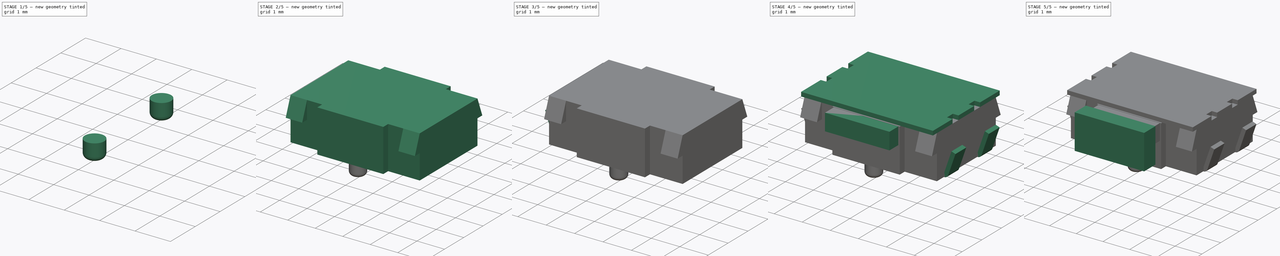
[diagram: build sequence overview — one tinted view per stage of 5, left to right]
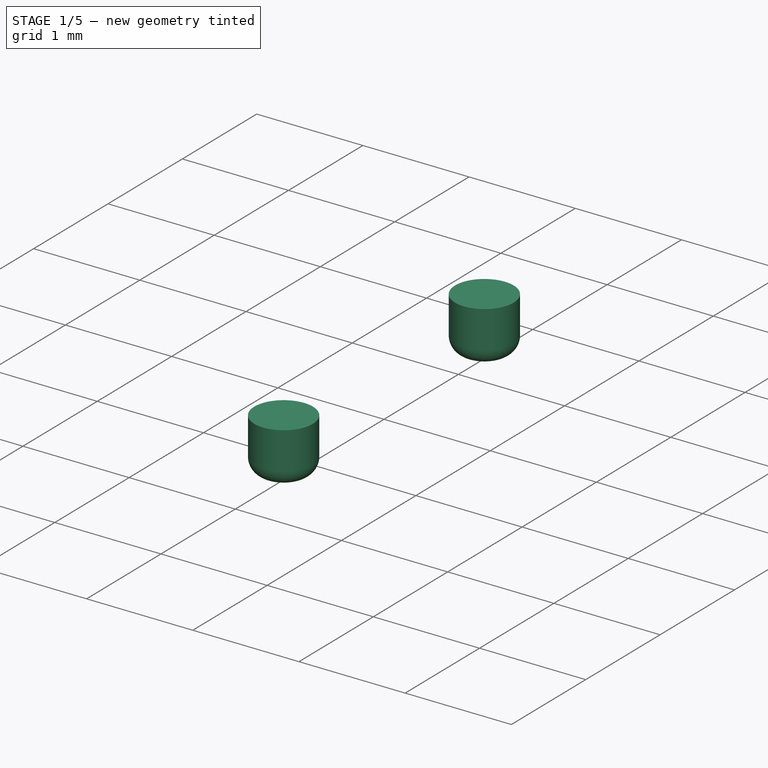
[diagram: stage 1 of 5 — iso view after this stage's code; geometry added in this stage tinted green]
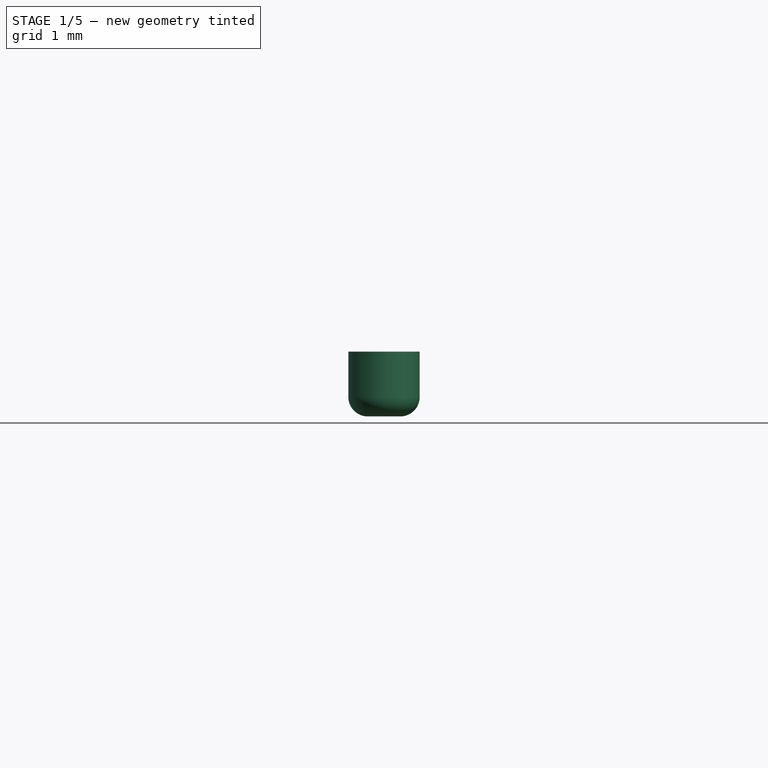
[diagram: stage 1 of 5 — front view after this stage's code; geometry added in this stage tinted green]
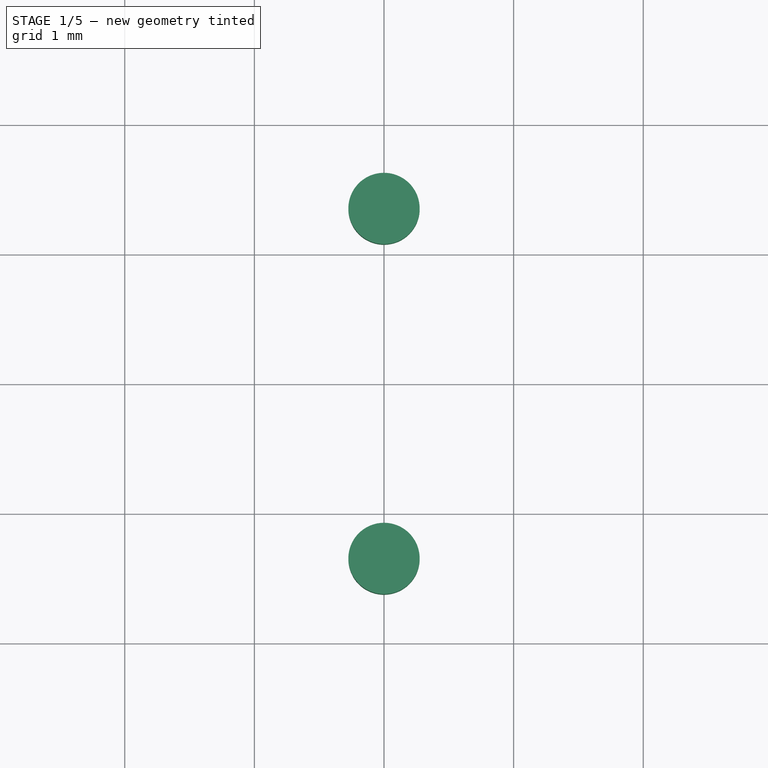
[diagram: stage 1 of 5 — top view after this stage's code; geometry added in this stage tinted green]
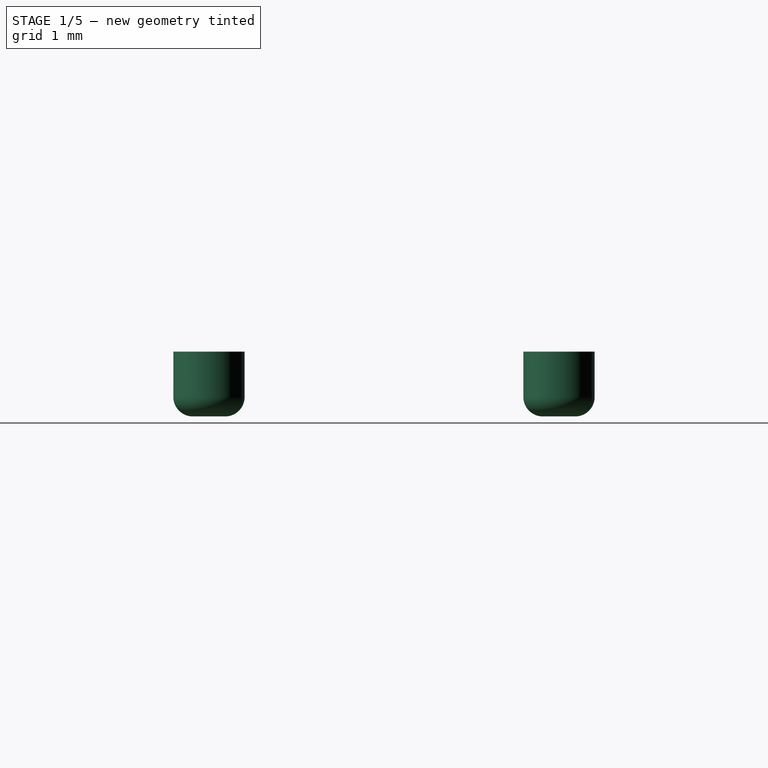
[diagram: stage 1 of 5 — right view after this stage's code; geometry added in this stage tinted green]
FCSTD DOCUMENT  (FreeCAD 0.18R)
Label: THAU13
License: All rights reserved
LicenseURL: http://en.wikipedia.org/wiki/All_rights_reserved
objects: Sketcher::SketchObject×5, Part::Extrusion×5, Part::MultiFuse×4, Part::FeaturePython×4, Part::Box×2, Part::Fillet×1, Part::Mirroring×1
note: 22 computed .brp shape members not serialized (recipe doc carries the construction recipe); baked Part::Feature solids carry a one-line shape summary decoded from their .brp

FEATURE [Sketcher::SketchObject] Sketch001  label="skcontact"
  sketch-geometry (1):
    g0: Circle CenterX=0 CenterY=-1.35 CenterZ=0 NormalX=0 NormalY=0 NormalZ=1 AngleXU=0 Radius=0.275
  constraints (3):
    c: PointOnObject(g0,g-2)
    c: Radius(g0) = 0.275
    c: DistanceY(g0,g-1) = 1.35
FEATURE [Part::Extrusion] Extrude001  label="contact"
  Base = -> Sketch001
  Dir = (0,0,-1)
  DirMode = 0
  FaceMakerClass = Part::FaceMakerBullseye
  LengthFwd = 0.5
  LengthRev = 0
  Solid = true
  Symmetric = false
FEATURE [Part::Fillet] Fillet  label="contactform"
  Base = -> Extrude001
  Edges = 1 edges r=0.15: [Edge3]
FEATURE [Part::FeaturePython] Array003  label="contactforms"  # Draft array (typed FeaturePython)
  Angle = 360
  ArrayType = 0
  Axis = (0,0,1)
  Base = -> Fillet
  Center = (0,0,0)
  Fuse = false
  IntervalAxis = (0,0,0)
  IntervalX = (1,0,0)
  IntervalY = (0,2.7,0)
  IntervalZ = (0,0,1)
  NumberPolar = 1
  NumberX = 1
  NumberY = 2
  NumberZ = 1
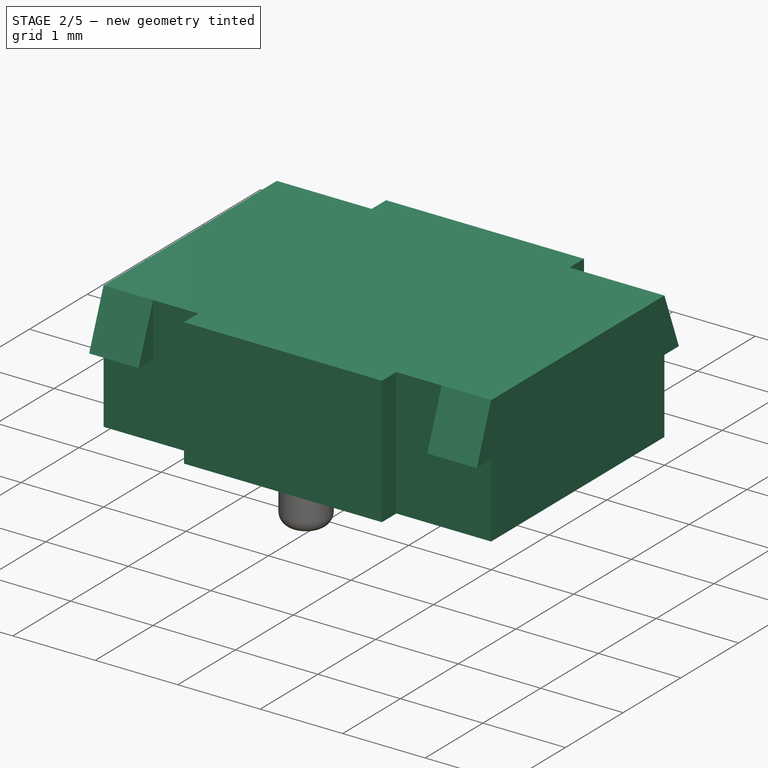
[diagram: stage 2 of 5 — iso view after this stage's code; geometry added in this stage tinted green]
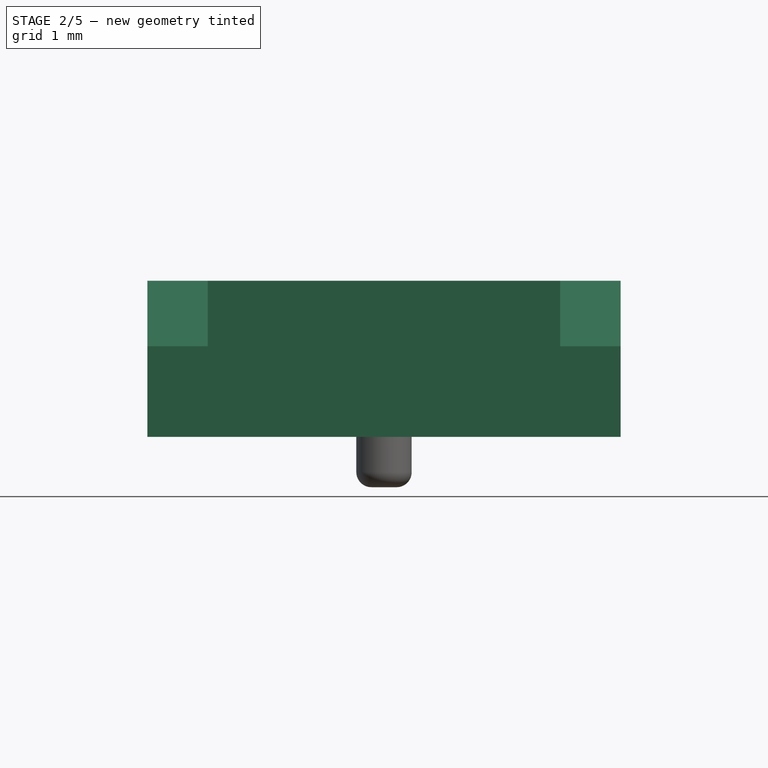
[diagram: stage 2 of 5 — front view after this stage's code; geometry added in this stage tinted green]
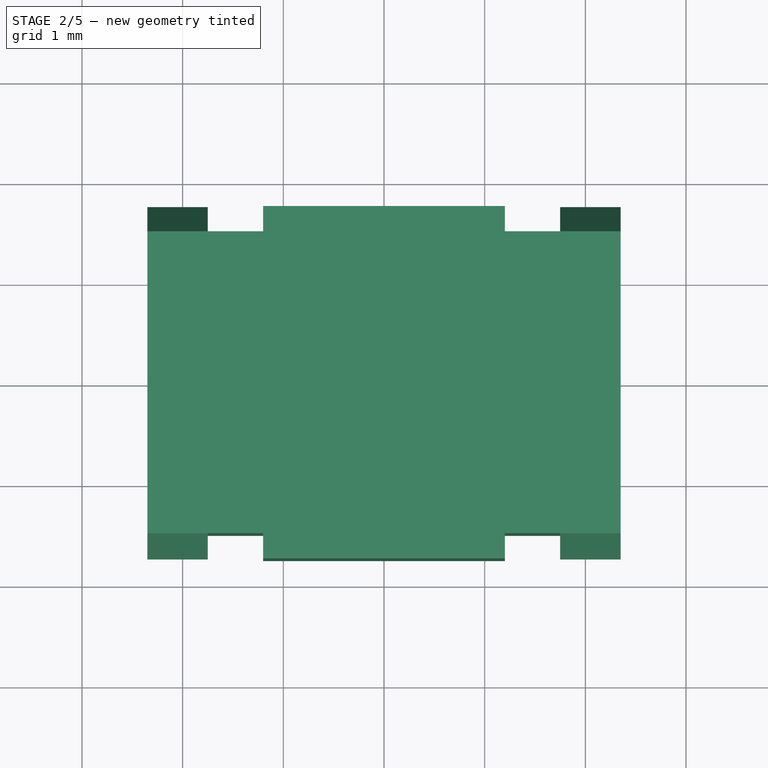
[diagram: stage 2 of 5 — top view after this stage's code; geometry added in this stage tinted green]
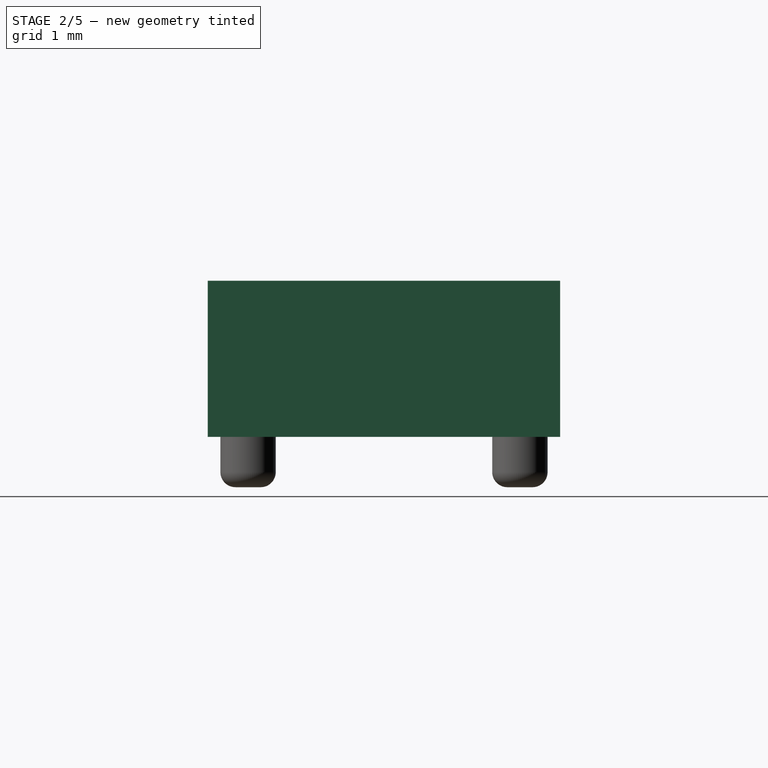
[diagram: stage 2 of 5 — right view after this stage's code; geometry added in this stage tinted green]
FEATURE [Sketcher::SketchObject] Sketch002  label="skhousing"
  sketch-geometry (12):
    g0: LineSegment StartX=-2.35 StartY=1.5 StartZ=0 EndX=-1.2 EndY=1.5 EndZ=0
    g1: LineSegment StartX=2.35 StartY=1.5 StartZ=0 EndX=2.35 EndY=-1.5 EndZ=0
    g2: LineSegment StartX=-1.2 StartY=-1.5 StartZ=0 EndX=-2.35 EndY=-1.5 EndZ=0
    g3: LineSegment StartX=-2.35 StartY=-1.5 StartZ=0 EndX=-2.35 EndY=1.5 EndZ=0
    g4: LineSegment StartX=2.35 StartY=-1.5 StartZ=0 EndX=1.2 EndY=-1.5 EndZ=0
    g5: LineSegment StartX=1.2 StartY=-1.5 StartZ=0 EndX=1.2 EndY=-1.75 EndZ=0
    g6: LineSegment StartX=1.2 StartY=-1.75 StartZ=0 EndX=-1.2 EndY=-1.75 EndZ=0
    g7: LineSegment StartX=-1.2 StartY=-1.75 StartZ=0 EndX=-1.2 EndY=-1.5 EndZ=0
    g8: LineSegment StartX=-1.2 StartY=1.5 StartZ=0 EndX=-1.2 EndY=1.75 EndZ=0
    g9: LineSegment StartX=-1.2 StartY=1.75 StartZ=0 EndX=1.2 EndY=1.75 EndZ=0
    g10: LineSegment StartX=1.2 StartY=1.75 StartZ=0 EndX=1.2 EndY=1.5 EndZ=0
    g11: LineSegment StartX=1.2 StartY=1.5 StartZ=0 EndX=2.35 EndY=1.5 EndZ=0
  constraints (36):
    c: Coincident(g2,g3)
    c: Coincident(g3,g0)
    c: Horizontal(g0)
    c: Horizontal(g2)
    c: Vertical(g1)
    c: Vertical(g3)
    c: DistanceY(g2,g-1) = 1.5
    c: DistanceX(g2,g-1) = 2.35
    c: DistanceY(g-1,g0) = 1.5
    c: DistanceX(g-1,g1) = 2.35
    c: Coincident(g4,g5)
    c: Coincident(g5,g6)
    c: Coincident(g6,g7)
    c: Horizontal(g4)
    c: Horizontal(g6)
    c: Vertical(g5)
    c: Vertical(g7)
    c: Coincident(g1,g4)
    c: Coincident(g2,g7)
    c: Equal(g2,g4)
    c: DistanceX(g6,g-1) = 1.2
    c: Equal(g3,g1)
    c: DistanceY(g6,g-1) = 1.75
    c: Coincident(g0,g8)
    c: Vertical(g8)
    c: Coincident(g8,g9)
    c: Horizontal(g9)
    c: Coincident(g9,g10)
    c: Vertical(g10)
    c: Coincident(g10,g11)
    c: Coincident(g11,g1)
    c: Horizontal(g11)
    c: Equal(g0,g11)
    c: Equal(g11,g4)
    c: Equal(g8,g10)
    c: DistanceY(g-1,g8) = 1.75
FEATURE [Part::Extrusion] Extrude002  label="housing"
  Base = -> Sketch002
  Dir = (0,0,1)
  DirMode = 2
  FaceMakerClass = Part::FaceMakerBullseye
  LengthFwd = 1.55
  LengthRev = 0
  Solid = true
  Symmetric = false
FEATURE [Sketcher::SketchObject] Sketch004  label="skclaw"
  Placement = pos=(1.75,0,0) rot=(0.57735,0.57735,0.57735;2.0944rad)
  sketch-geometry (3):
    g0: LineSegment StartX=-1.5 StartY=0.9 StartZ=0 EndX=-1.75 EndY=0.9 EndZ=0
    g1: LineSegment StartX=-1.75 StartY=0.9 StartZ=0 EndX=-1.5 EndY=1.55 EndZ=0
    g2: LineSegment StartX=-1.5 StartY=1.55 StartZ=0 EndX=-1.5 EndY=0.9 EndZ=0
  constraints (9):
    c: Horizontal(g0)
    c: Coincident(g1,g0)
    c: Coincident(g2,g1)
    c: Coincident(g2,g0)
    c: Vertical(g2)
    c: DistanceX(g0,g-1) = 1.5
    c: DistanceX(g0,g0) = 0.25
    c: DistanceY(g-1,g0) = 0.9
    c: DistanceY(g2,g2) = 0.65
FEATURE [Part::Extrusion] Extrude004  label="claw"
  Base = -> Sketch004
  Dir = (1,-1e-16,2e-16)
  DirMode = 2
  FaceMakerClass = Part::FaceMakerBullseye
  LengthFwd = 0.6
  LengthRev = 0
  Solid = true
  Symmetric = false
FEATURE [Part::FeaturePython] Array001  label="frontclaws"  # Draft array (typed FeaturePython)
  Angle = 360
  ArrayType = 0
  Axis = (0,0,1)
  Base = -> Extrude004
  Center = (0,0,0)
  Fuse = false
  IntervalAxis = (0,0,0)
  IntervalX = (-4.1,0,0)
  IntervalY = (0,1,0)
  IntervalZ = (0,0,1)
  NumberPolar = 1
  NumberX = 2
  NumberY = 1
  NumberZ = 1
FEATURE [Part::FeaturePython] Array002  label="claws"  # Draft array (typed FeaturePython)
  Angle = 360
  ArrayType = 1
  Axis = (0,0,1)
  Base = -> Array001
  Center = (0,0,0)
  Fuse = false
  IntervalAxis = (0,0,0)
  IntervalX = (1,0,0)
  IntervalY = (0,1,0)
  IntervalZ = (0,0,1)
  NumberPolar = 2
  NumberX = 1
  NumberY = 1
  NumberZ = 1
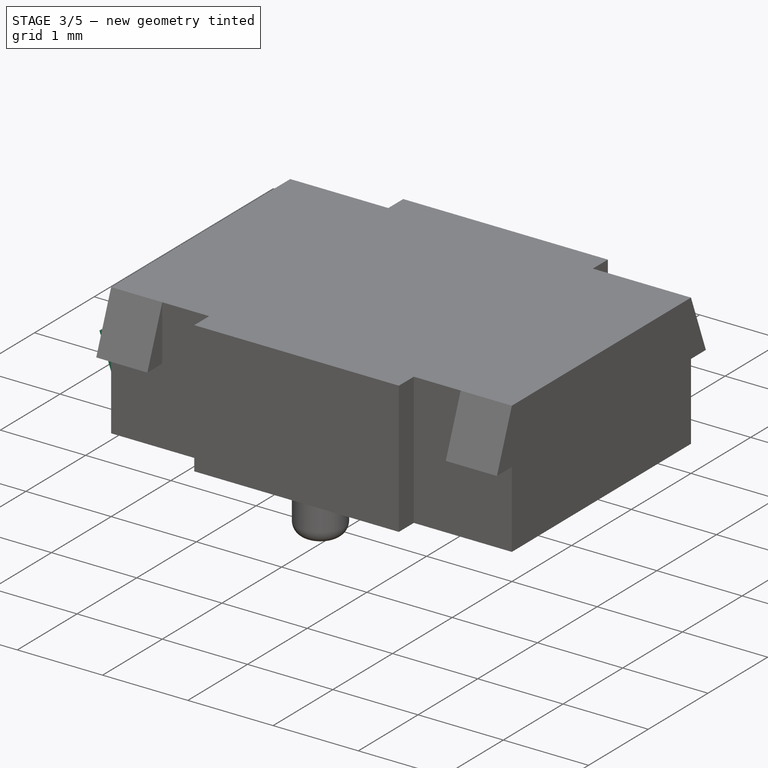
[diagram: stage 3 of 5 — iso view after this stage's code; geometry added in this stage tinted green]
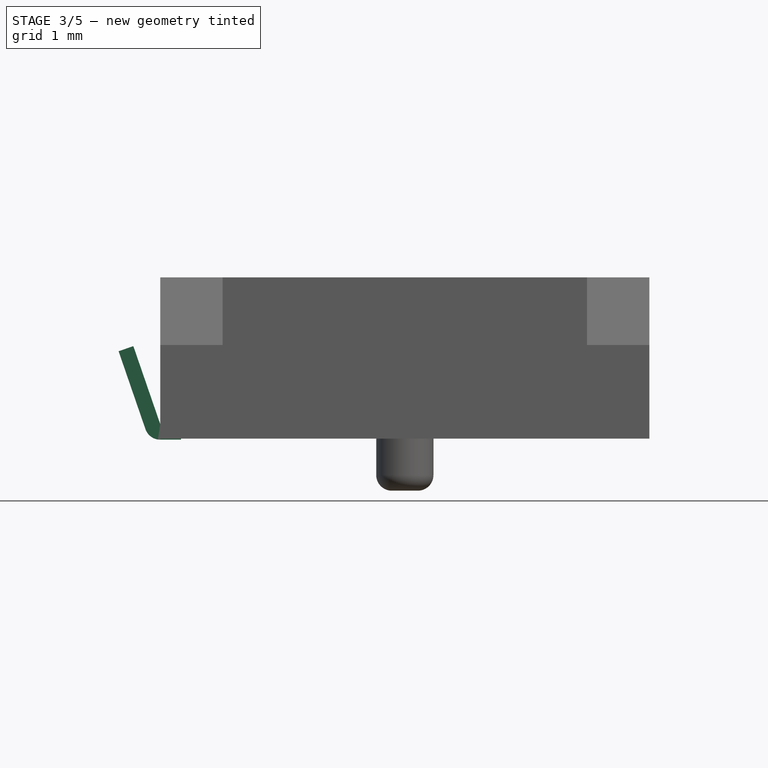
[diagram: stage 3 of 5 — front view after this stage's code; geometry added in this stage tinted green]
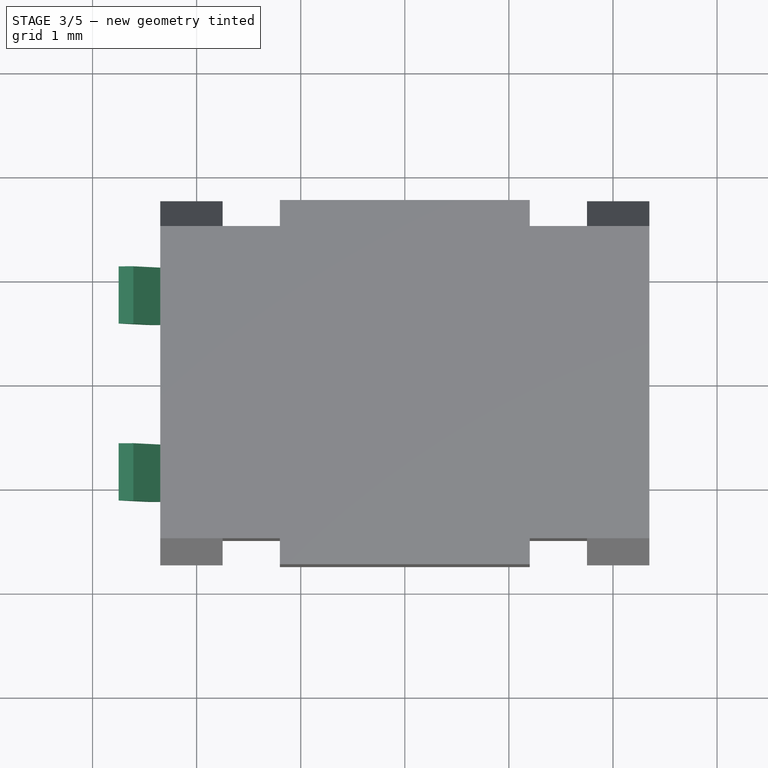
[diagram: stage 3 of 5 — top view after this stage's code; geometry added in this stage tinted green]
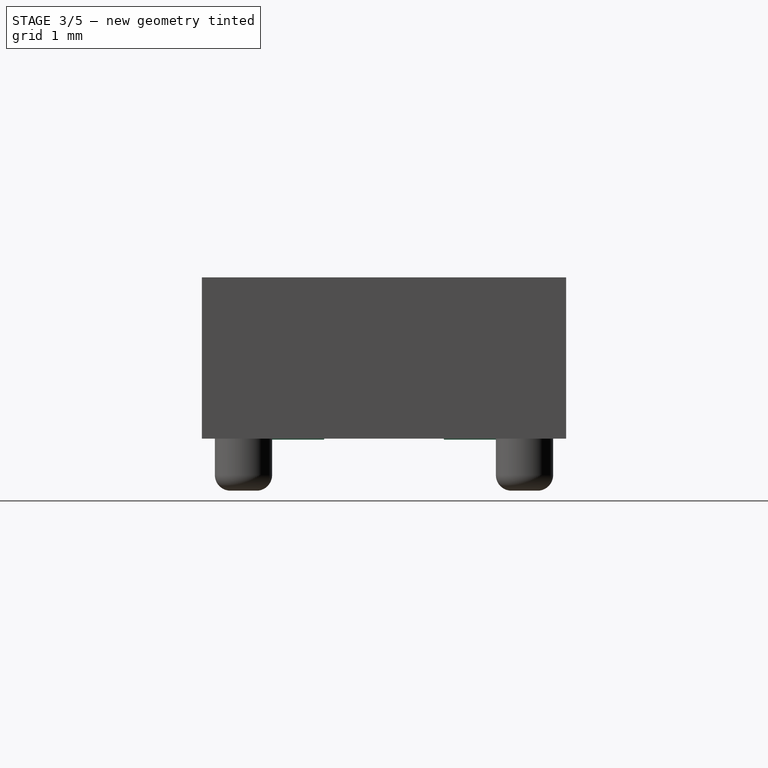
[diagram: stage 3 of 5 — right view after this stage's code; geometry added in this stage tinted green]
FEATURE [Sketcher::SketchObject] Sketch  label="skleg"
  Placement = pos=(0,-0.575,0) rot=(1,0,0;1.5708rad)
  sketch-geometry (7):
    g0: LineSegment StartX=-2.75 StartY=0.85 StartZ=0 EndX=-2.49181 EndY=0.101109 EndZ=0
    g1: ArcOfCircle CenterX=-2.35 CenterY=0.15 CenterZ=0 NormalX=0 NormalY=0 NormalZ=1 AngleXU=0 Radius=0.15 StartAngle=3.4736 EndAngle=4.71239
    g2: LineSegment StartX=-2.75 StartY=0.85 StartZ=0 EndX=-2.60819 EndY=0.898891 EndZ=0
    g3: LineSegment StartX=-2.60819 StartY=0.898891 StartZ=0 EndX=-2.35 EndY=0.15 EndZ=0
    g4: LineSegment StartX=-2.35 StartY=0.15 StartZ=0 EndX=-2.15 EndY=0.15 EndZ=0
    g5: LineSegment StartX=-2.15 StartY=0.15 StartZ=0 EndX=-2.15 EndY=0 EndZ=0
    g6: LineSegment StartX=-2.15 StartY=0 StartZ=0 EndX=-2.35 EndY=0 EndZ=0
  constraints (20):
    c: DistanceX(g1,g-1) = 2.35
    c: DistanceX(g0,g1) = 0.4
    c: DistanceY(g1,g0) = 0.85
    c: PointOnObject(g1,g-1)
    c: Tangent(g0,g1) = -1.5708
    c: Coincident(g2,g0)
    c: Coincident(g3,g2)
    c: Parallel(g3,g0)
    c: Perpendicular(g2,g0)
    c: Distance(g2) = 0.15
    c: Coincident(g1,g3)
    c: Coincident(g4,g1)
    c: Horizontal(g4)
    c: Coincident(g5,g4)
    c: Vertical(g5)
    c: Coincident(g6,g5)
    c: Coincident(g6,g1)
    c: Horizontal(g6)
    c: DistanceX(g4,g4) = 0.2
    c: Equal(g4,g6)
FEATURE [Part::Extrusion] Extrude  label="leg"
  Base = -> Sketch
  Dir = (0,-1,2e-16)
  DirMode = 2
  FaceMakerClass = Part::FaceMakerBullseye
  LengthFwd = 0.55
  LengthRev = 0
  Placement = pos=(0,0,-0.01) rot=(0,0,1;0rad)
  Solid = true
  Symmetric = false
FEATURE [Part::FeaturePython] Array  label="leftlegs"  # Draft array (typed FeaturePython)
  Angle = 360
  ArrayType = 0
  Axis = (0,0,1)
  Base = -> Extrude
  Center = (0,0,0)
  Fuse = false
  IntervalAxis = (0,0,0)
  IntervalX = (1,0,0)
  IntervalY = (0,1.7,0)
  IntervalZ = (0,0,1)
  NumberPolar = 1
  NumberX = 1
  NumberY = 2
  NumberZ = 1
FEATURE [Part::MultiFuse] Fusion002  label="housings"
  Shapes = -> [Array003,Array002,Extrude002]
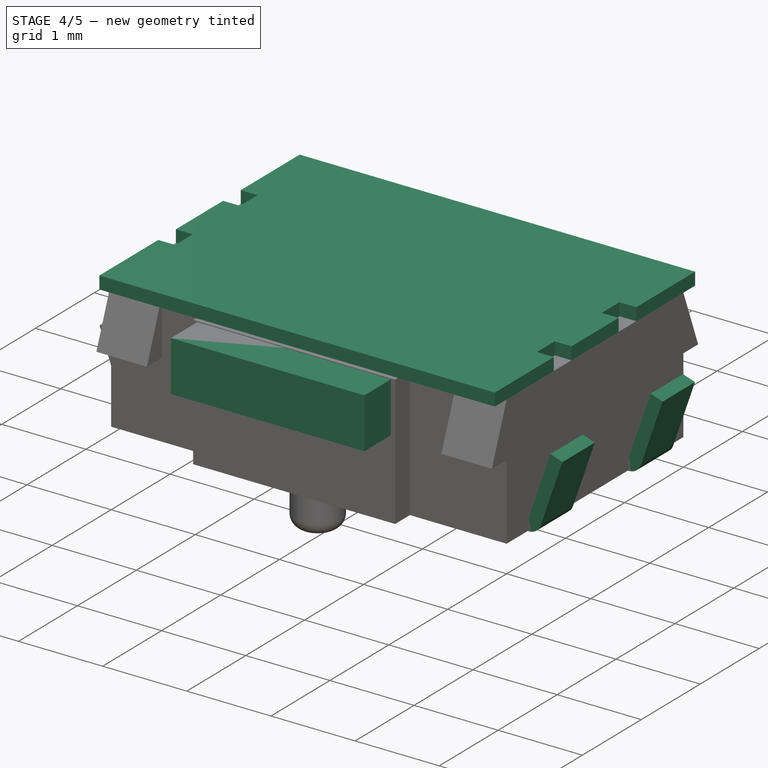
[diagram: stage 4 of 5 — iso view after this stage's code; geometry added in this stage tinted green]
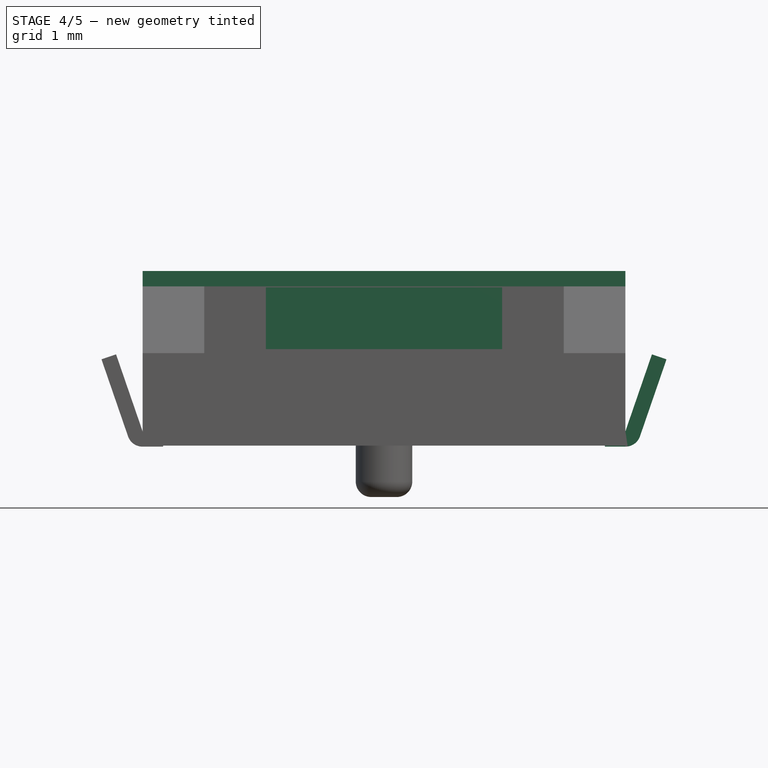
[diagram: stage 4 of 5 — front view after this stage's code; geometry added in this stage tinted green]
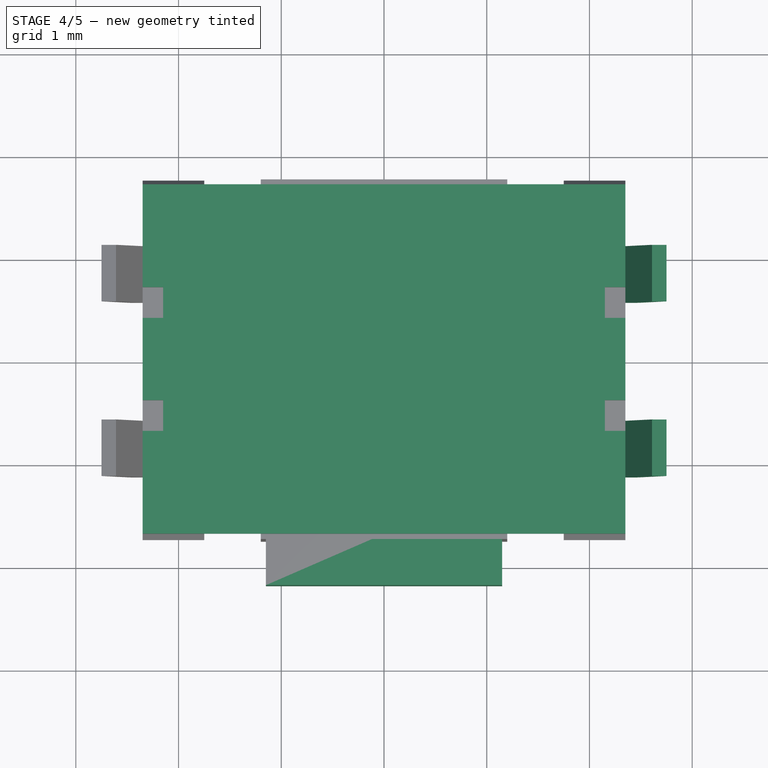
[diagram: stage 4 of 5 — top view after this stage's code; geometry added in this stage tinted green]
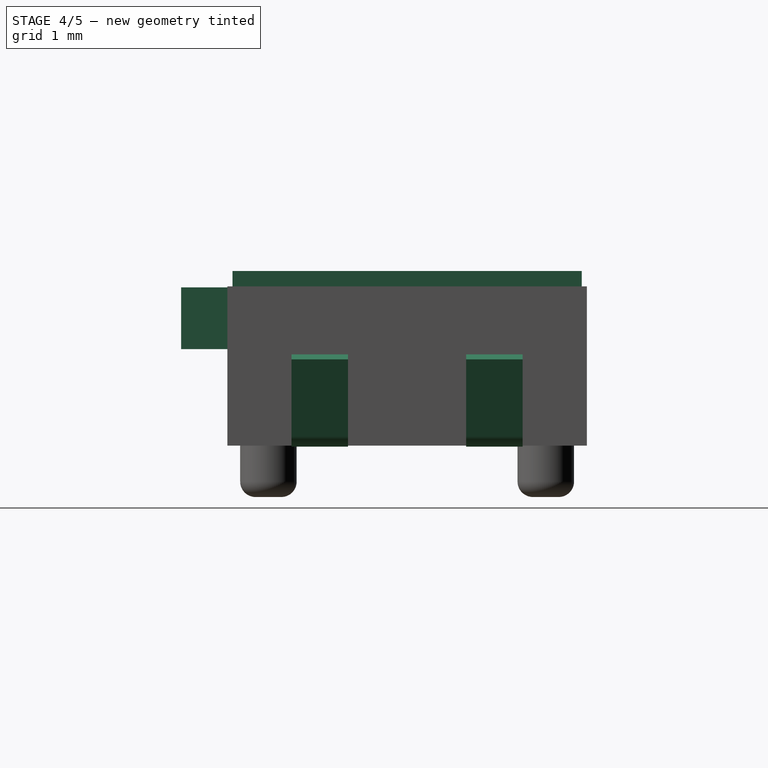
[diagram: stage 4 of 5 — right view after this stage's code; geometry added in this stage tinted green]
FEATURE [Sketcher::SketchObject] Sketch003  label="skcover"
  Placement = pos=(0,0,1.55) rot=(0,0,1;0rad)
  sketch-geometry (20):
    g0: LineSegment StartX=-2.35 StartY=1.7 StartZ=0 EndX=2.35 EndY=1.7 EndZ=0
    g1: LineSegment StartX=2.35 StartY=1.7 StartZ=0 EndX=2.35 EndY=0.7 EndZ=0
    g2: LineSegment StartX=2.35 StartY=0.7 StartZ=0 EndX=2.15 EndY=0.7 EndZ=0
    g3: LineSegment StartX=2.15 StartY=0.7 StartZ=0 EndX=2.15 EndY=0.4 EndZ=0
    g4: LineSegment StartX=2.15 StartY=0.4 StartZ=0 EndX=2.35 EndY=0.4 EndZ=0
    g5: LineSegment StartX=2.35 StartY=0.4 StartZ=0 EndX=2.35 EndY=-0.4 EndZ=0
    g6: LineSegment StartX=2.35 StartY=-0.4 StartZ=0 EndX=2.15 EndY=-0.4 EndZ=0
    g7: LineSegment StartX=2.15 StartY=-0.4 StartZ=0 EndX=2.15 EndY=-0.7 EndZ=0
    g8: LineSegment StartX=2.15 StartY=-0.7 StartZ=0 EndX=2.35 EndY=-0.7 EndZ=0
    g9: LineSegment StartX=2.35 StartY=-0.7 StartZ=0 EndX=2.35 EndY=-1.7 EndZ=0
    g10: LineSegment StartX=2.35 StartY=-1.7 StartZ=0 EndX=-2.35 EndY=-1.7 EndZ=0
    g11: LineSegment StartX=-2.35 StartY=-1.7 StartZ=0 EndX=-2.35 EndY=-0.7 EndZ=0
    g12: LineSegment StartX=-2.35 StartY=-0.7 StartZ=0 EndX=-2.15 EndY=-0.7 EndZ=0
    g13: LineSegment StartX=-2.15 StartY=-0.7 StartZ=0 EndX=-2.15 EndY=-0.4 EndZ=0
    g14: LineSegment StartX=-2.15 StartY=-0.4 StartZ=0 EndX=-2.35 EndY=-0.4 EndZ=0
    g15: LineSegment StartX=-2.35 StartY=-0.4 StartZ=0 EndX=-2.35 EndY=0.4 EndZ=0
    g16: LineSegment StartX=-2.35 StartY=0.4 StartZ=0 EndX=-2.15 EndY=0.4 EndZ=0
    g17: LineSegment StartX=-2.15 StartY=0.4 StartZ=0 EndX=-2.15 EndY=0.7 EndZ=0
    g18: LineSegment StartX=-2.15 StartY=0.7 StartZ=0 EndX=-2.35 EndY=0.7 EndZ=0
    g19: LineSegment StartX=-2.35 StartY=0.7 StartZ=0 EndX=-2.35 EndY=1.7 EndZ=0
  constraints (60):
    c: Horizontal(g0)
    c: Coincident(g0,g1)
    c: Vertical(g1)
    c: Coincident(g1,g2)
    c: Horizontal(g2)
    c: Coincident(g2,g3)
    c: Vertical(g3)
    c: Coincident(g3,g4)
    c: Horizontal(g4)
    c: Coincident(g4,g5)
    c: Vertical(g5)
    c: Coincident(g5,g6)
    c: Horizontal(g6)
    c: Coincident(g6,g7)
    c: Vertical(g7)
    c: Coincident(g7,g8)
    c: Horizontal(g8)
    c: Coincident(g8,g9)
    c: Vertical(g9)
    c: Coincident(g9,g10)
    c: Horizontal(g10)
    c: Coincident(g10,g11)
    c: Vertical(g11)
    c: Coincident(g11,g12)
    c: Horizontal(g12)
    c: Coincident(g12,g13)
    c: Vertical(g13)
    c: Coincident(g13,g14)
    c: Horizontal(g14)
    c: Coincident(g14,g15)
    c: Vertical(g15)
    c: Coincident(g15,g16)
    c: Horizontal(g16)
    c: Coincident(g16,g17)
    c: Vertical(g17)
    c: Coincident(g17,g18)
    c: Horizontal(g18)
    c: Coincident(g18,g19)
    c: Coincident(g0,g19)
    c: Vertical(g19)
    c: DistanceY(g19,g19) = 1
    c: Equal(g1,g19)
    c: Equal(g19,g11)
    c: Equal(g11,g9)
    c: Equal(g16,g18)
    c: Equal(g18,g12)
    c: Equal(g12,g8)
    c: Equal(g8,g4)
    c: Equal(g4,g2)
    c: DistanceX(g18,g18) = 0.2
    c: DistanceX(g10,g-1) = 2.35
    c: DistanceX(g-1,g9) = 2.35
    c: Equal(g18,g14)
    c: Equal(g14,g6)
    c: Equal(g7,g3)
    c: Equal(g3,g13)
    c: Equal(g13,g17)
    c: DistanceY(g17,g17) = 0.3
    c: DistanceY(g10,g-1) = 1.7
    c: DistanceY(g-1,g0) = 1.7
FEATURE [Part::Extrusion] Extrude003  label="cover"
  Base = -> Sketch003
  Dir = (0,0,1)
  DirMode = 2
  FaceMakerClass = Part::FaceMakerBullseye
  LengthFwd = 0.15
  LengthRev = 0
  Solid = true
  Symmetric = false
FEATURE [Part::Box] Box001  label="arm"
  AttacherType = Attacher::AttachEngine3D
  Height = 0.6
  Length = 2.3
  Placement = pos=(-1.15,-2.2,0.94) rot=(0,0,1;0rad)
  Width = 1
FEATURE [Part::Mirroring] mirror  label="rightlegs"
  Base = (0,0,0)
  Normal = (1,0,0)
  Source = -> Array
FEATURE [Part::MultiFuse] Fusion  label="metal"
  Shapes = -> [mirror,Array,Extrude003]
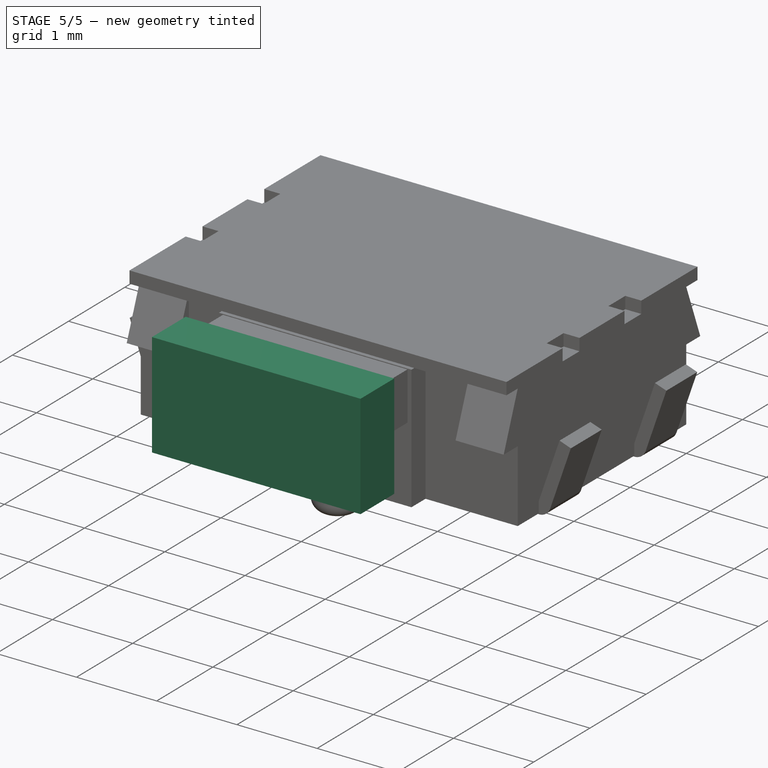
[diagram: stage 5 of 5 — iso view after this stage's code; geometry added in this stage tinted green]
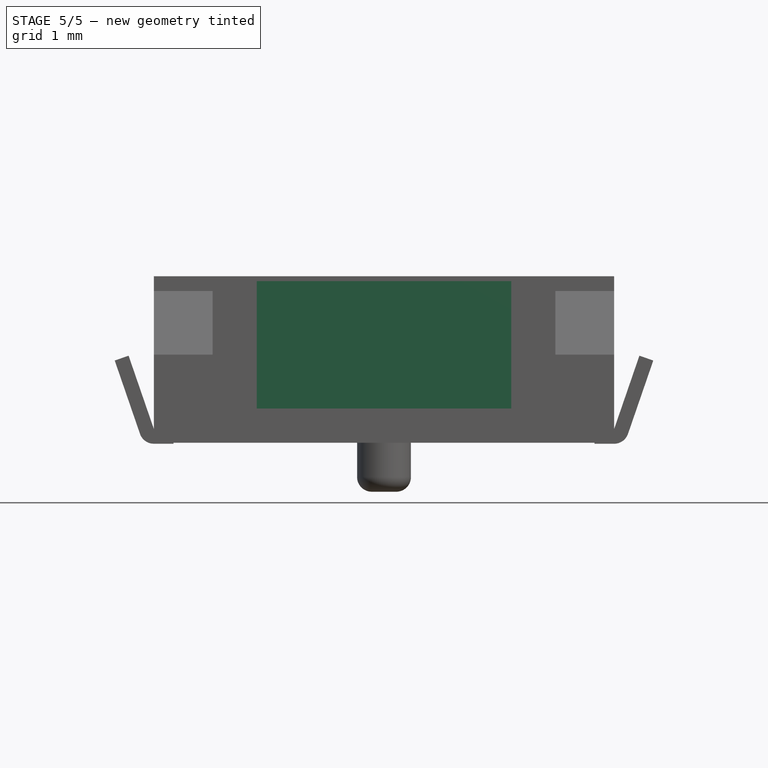
[diagram: stage 5 of 5 — front view after this stage's code; geometry added in this stage tinted green]
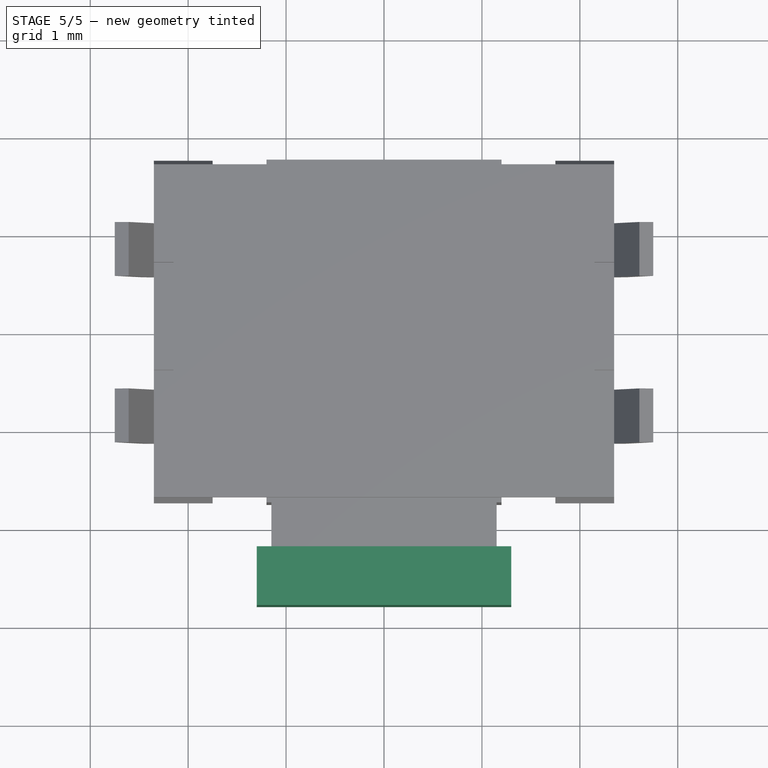
[diagram: stage 5 of 5 — top view after this stage's code; geometry added in this stage tinted green]
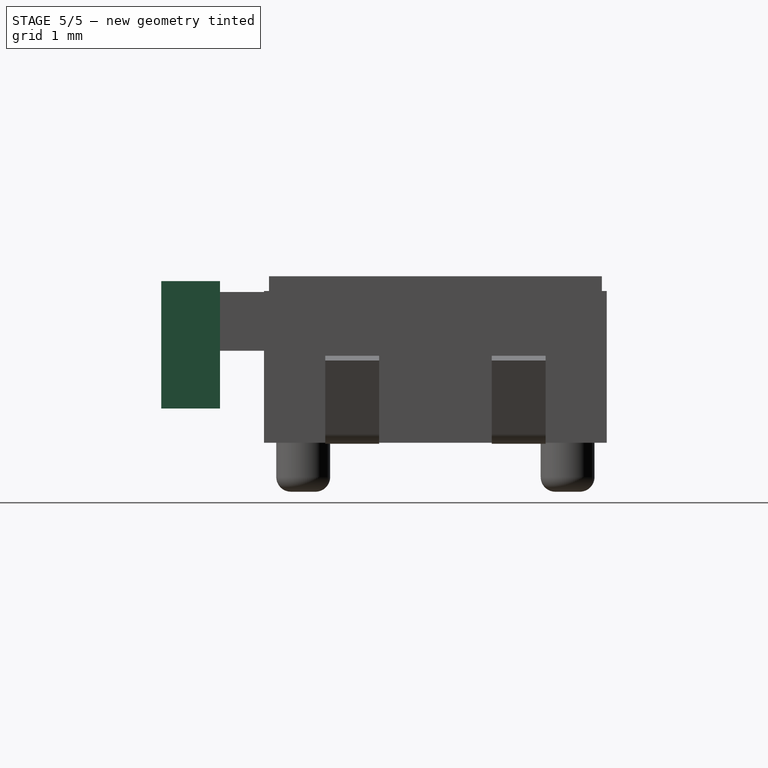
[diagram: stage 5 of 5 — right view after this stage's code; geometry added in this stage tinted green]
FEATURE [Part::Box] Box  label="notch"
  AttacherType = Attacher::AttachEngine3D
  Height = 1.3
  Length = 2.6
  Placement = pos=(-1.3,-2.8,0.35) rot=(0,0,1;0rad)
  Width = 0.6
FEATURE [Part::MultiFuse] Fusion001  label="armandnotch"
  Shapes = -> [Box001,Box]
FEATURE [Part::MultiFuse] Fusion003  label="THAU13"
  Shapes = -> [Fusion002,Fusion,Fusion001]
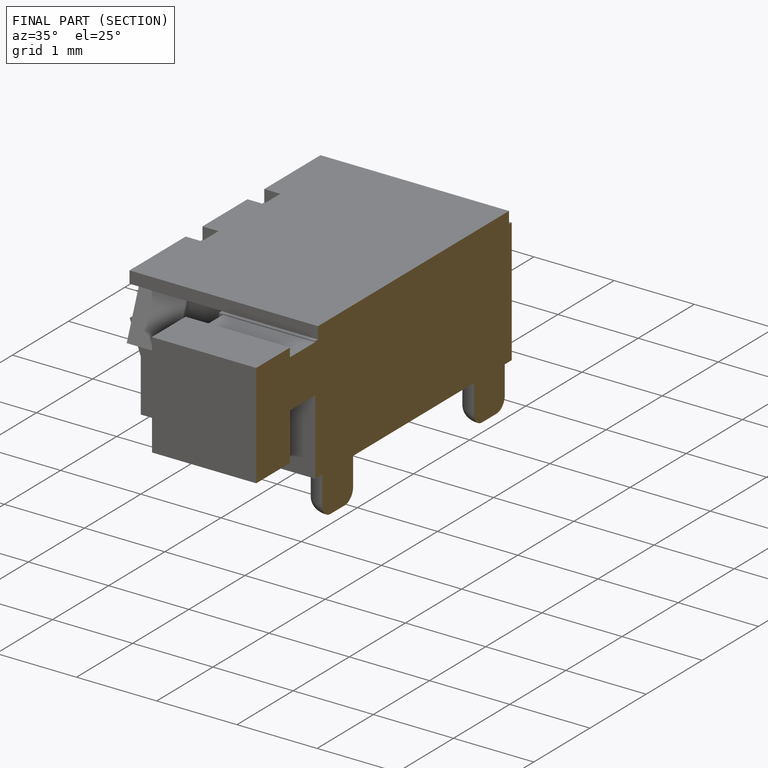
[diagram: finished part — half-section view (interior)]
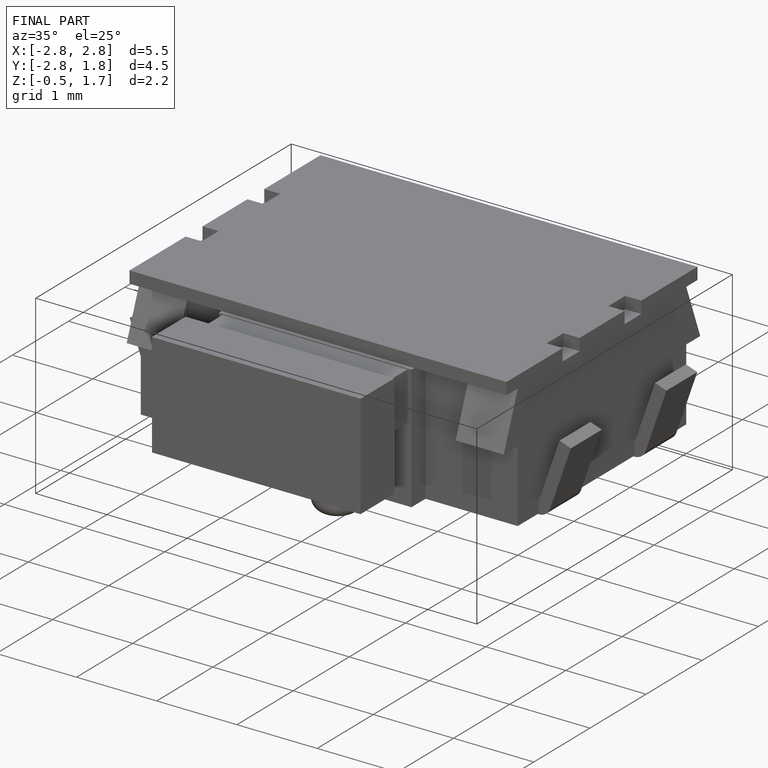
[diagram: finished part — iso view with bounding-box wireframe]
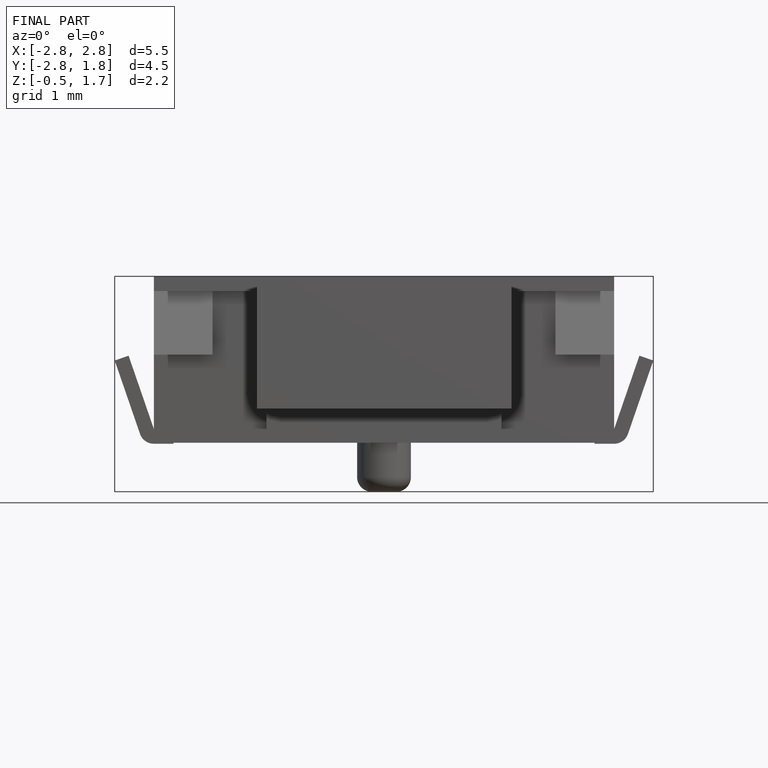
[diagram: finished part — front view with bounding-box wireframe]
